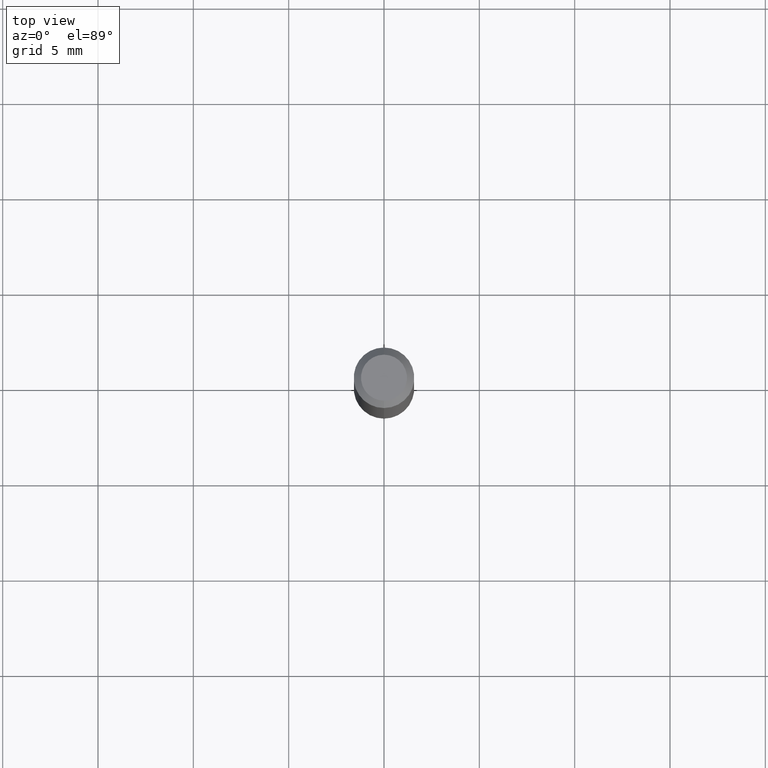
[diagram: clean part render]
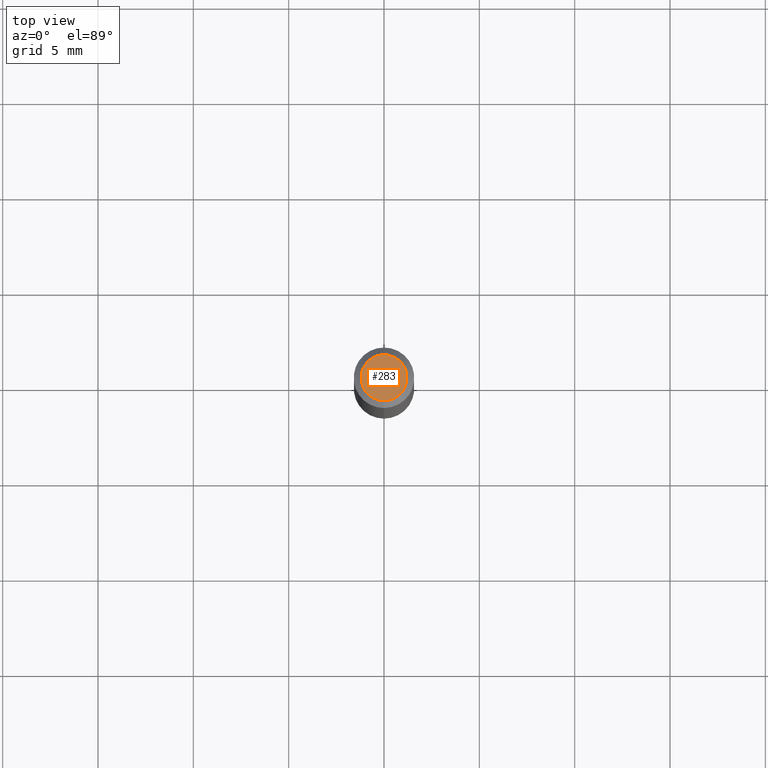
[diagram: same view with one face highlighted and labeled with its STEP entity id]
A machine part, top view. The second image highlights one B-rep face of the part: STEP entity #283.
In plain terms, the highlighted planar face has unit normal (0, -0, -1).
Its self-contained STEP definition (entity closure, byte-faithful):
#6 = CARTESIAN_POINT ( 'NONE',  ( -6.680667879903571432E-45, 9.538085489645678336E-31, 2.731836005759327790E-16 ) ) ;
#34 = CARTESIAN_POINT ( 'NONE',  ( 3.840629472727447874E-16, 0.04750000000000000749, 1.073394357713768884E-16 ) ) ;
#40 = EDGE_CURVE ( 'NONE', #395, #95, #434, .T. ) ;
#95 = VERTEX_POINT ( 'NONE', #34 ) ;
#152 = DIRECTION ( 'NONE',  ( -2.445486429573083164E-29, 3.491456101148545241E-15, 1.000000000000000000 ) ) ;
#192 = FACE_OUTER_BOUND ( 'NONE', #508, .T. ) ;
#193 = CARTESIAN_POINT ( 'NONE',  ( -6.680667879903571432E-45, 9.538085489645678336E-31, 2.731836005759327790E-16 ) ) ;
#198 = AXIS2_PLACEMENT_3D ( 'NONE', #463, #278, #238 ) ;
#238 = DIRECTION ( 'NONE',  ( 6.982962677686265922E-15, 1.000000000000000000, -3.491456101148545241E-15 ) ) ;
#266 = ORIENTED_EDGE ( 'NONE', *, *, #40, .T. ) ;
#278 = DIRECTION ( 'NONE',  ( 2.445486429573082884E-29, -3.491456101148545241E-15, -1.000000000000000000 ) ) ;
#283 = ADVANCED_FACE ( 'NONE', ( #192 ), #317, .F. ) ;
#296 = AXIS2_PLACEMENT_3D ( 'NONE', #193, #152, #319 ) ;
#317 = PLANE ( 'NONE',  #198 ) ;
#319 = DIRECTION ( 'NONE',  ( -6.982962677686265133E-15, -1.000000000000000000, 3.491456101148544846E-15 ) ) ;
#378 = ORIENTED_EDGE ( 'NONE', *, *, #450, .T. ) ;
#381 = DIRECTION ( 'NONE',  ( -2.445486429573083164E-29, 3.491456101148545241E-15, 1.000000000000000000 ) ) ;
#395 = VERTEX_POINT ( 'NONE', #477 ) ;
#403 = AXIS2_PLACEMENT_3D ( 'NONE', #6, #381, #412 ) ;
#412 = DIRECTION ( 'NONE',  ( -6.982962677686265133E-15, -1.000000000000000000, 3.491456101148544846E-15 ) ) ;
#434 = CIRCLE ( 'NONE', #296, 0.04750000000000000749 ) ;
#450 = EDGE_CURVE ( 'NONE', #95, #395, #457, .T. ) ;
#457 = CIRCLE ( 'NONE', #403, 0.04750000000000000749 ) ;
#463 = CARTESIAN_POINT ( 'NONE',  ( 3.316907271900976589E-16, 0.04750000000000000749, -2.925236451658952572E-17 ) ) ;
#477 = CARTESIAN_POINT ( 'NONE',  ( -3.773273898774340269E-16, -0.04750000000000000749, 4.390277653804887312E-16 ) ) ;
#508 = EDGE_LOOP ( 'NONE', ( #378, #266 ) ) ;